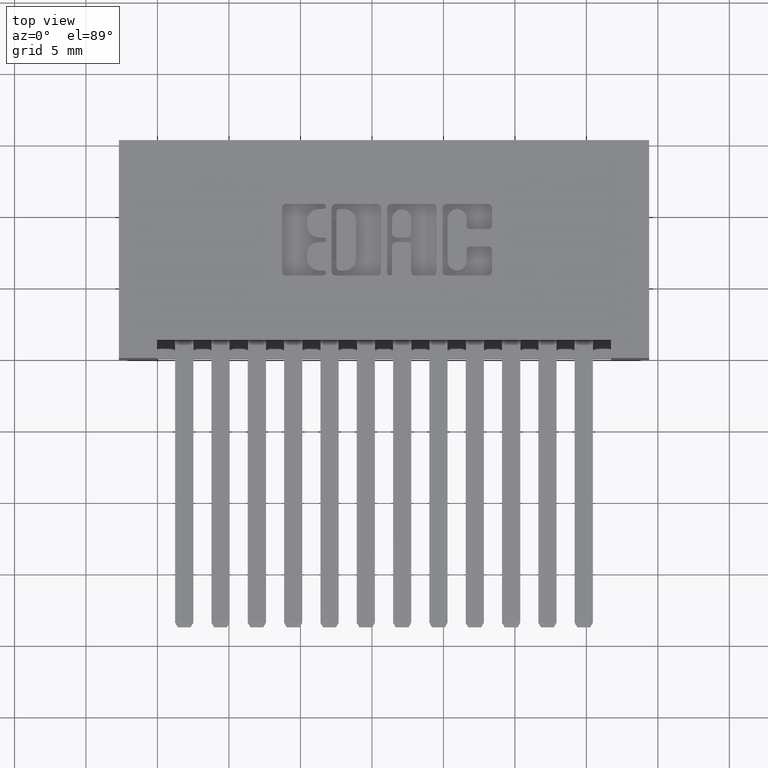
[diagram: clean part render]
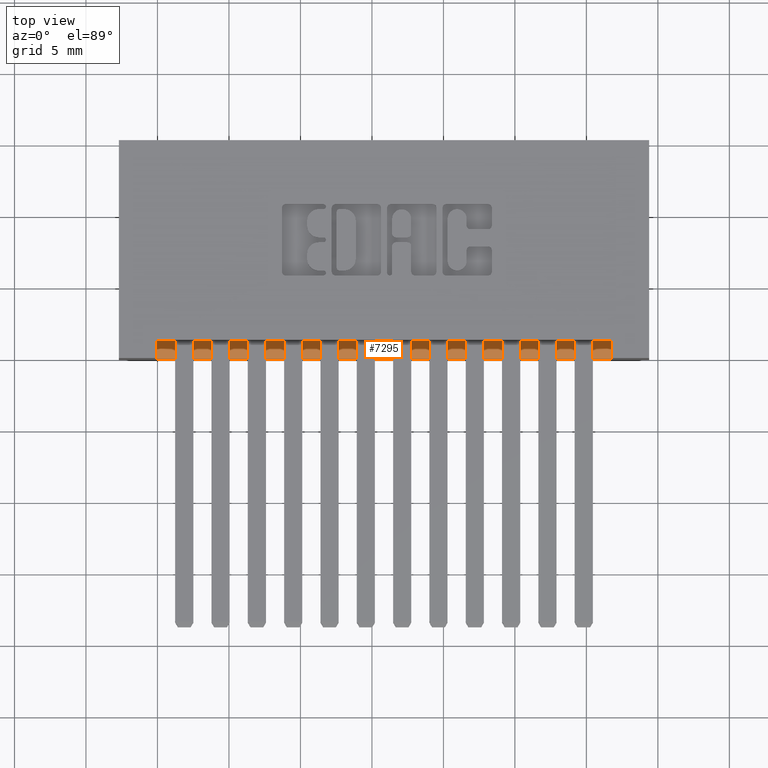
[diagram: same view with one face highlighted and labeled with its STEP entity id]
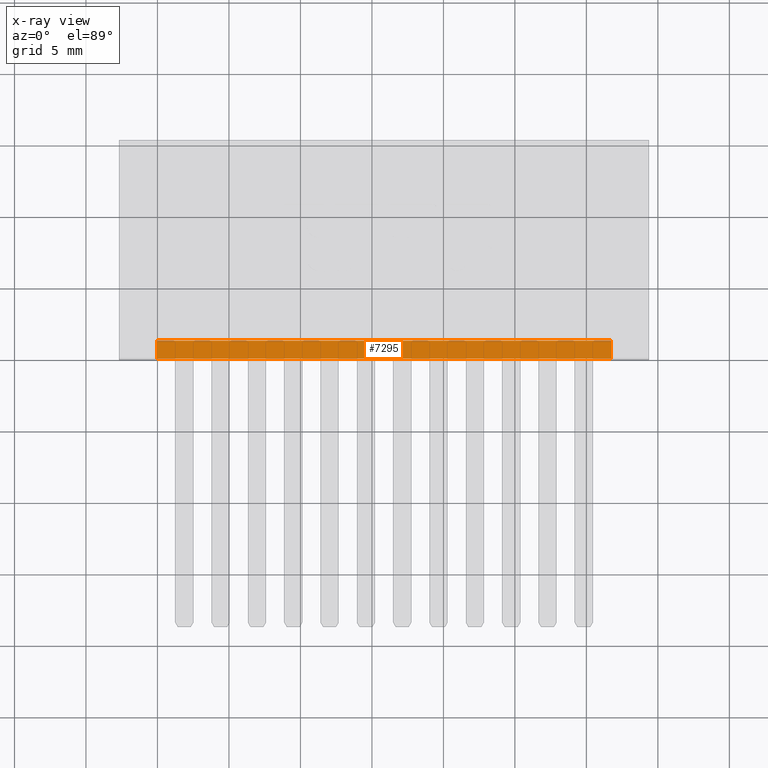
[diagram: x-ray of the same camera — body ghosted, the highlighted face saturated]
A machine part, top view. The second image highlights one B-rep face of the part: STEP entity #7295.
The next image is the same camera in x-ray: the body ghosted, the highlighted face saturated — about 0% of this face is hidden behind the body in this view.
In plain terms, the highlighted planar face has unit normal (0, 0, -1).
Its self-contained STEP definition (entity closure, byte-faithful):
#505 = EDGE_CURVE ( 'NONE', #4934, #10714, #10583, .T. ) ;
#1184 = VERTEX_POINT ( 'NONE', #3931 ) ;
#1445 = ORIENTED_EDGE ( 'NONE', *, *, #6365, .T. ) ;
#1530 = CARTESIAN_POINT ( 'NONE',  ( 0.3924999999999996800, 0.05000000000000000300, -0.1499999999999999900 ) ) ;
#1808 = DIRECTION ( 'NONE',  ( 0.0000000000000000000, 0.0000000000000000000, -1.000000000000000000 ) ) ;
#1895 = VECTOR ( 'NONE', #2578, 39.37007874015748100 ) ;
#2283 = CARTESIAN_POINT ( 'NONE',  ( 0.3924999999999996800, 0.05000000000000000300, -0.1499999999999999900 ) ) ;
#2415 = DIRECTION ( 'NONE',  ( 1.000000000000000000, 0.0000000000000000000, 0.0000000000000000000 ) ) ;
#2455 = CARTESIAN_POINT ( 'NONE',  ( 0.3924999999999996800, 0.05000000000000000300, -0.1499999999999999900 ) ) ;
#2473 = ORIENTED_EDGE ( 'NONE', *, *, #3725, .F. ) ;
#2578 = DIRECTION ( 'NONE',  ( -0.0000000000000000000, -1.000000000000000000, -0.0000000000000000000 ) ) ;
#3163 = DIRECTION ( 'NONE',  ( 1.000000000000000000, 0.0000000000000000000, 0.0000000000000000000 ) ) ;
#3725 = EDGE_CURVE ( 'NONE', #10714, #1184, #6353, .T. ) ;
#3931 = CARTESIAN_POINT ( 'NONE',  ( 1.642500000000000100, 0.0000000000000000000, -0.1499999999999999900 ) ) ;
#4407 = CARTESIAN_POINT ( 'NONE',  ( 1.642500000000000100, 0.05000000000000000300, -0.1499999999999999900 ) ) ;
#4934 = VERTEX_POINT ( 'NONE', #2455 ) ;
#5783 = ORIENTED_EDGE ( 'NONE', *, *, #6674, .T. ) ;
#6204 = DIRECTION ( 'NONE',  ( -0.0000000000000000000, -1.000000000000000000, -0.0000000000000000000 ) ) ;
#6299 = CARTESIAN_POINT ( 'NONE',  ( 1.642500000000000100, 0.05000000000000000300, -0.1499999999999999900 ) ) ;
#6353 = LINE ( 'NONE', #6299, #11254 ) ;
#6365 = EDGE_CURVE ( 'NONE', #11070, #1184, #9993, .T. ) ;
#6385 = CARTESIAN_POINT ( 'NONE',  ( 0.3924999999999996800, 0.0000000000000000000, -0.1499999999999999900 ) ) ;
#6674 = EDGE_CURVE ( 'NONE', #4934, #11070, #10139, .T. ) ;
#7082 = PLANE ( 'NONE',  #9789 ) ;
#7295 = ADVANCED_FACE ( 'NONE', ( #11857 ), #7082, .F. ) ;
#7381 = VECTOR ( 'NONE', #3163, 39.37007874015748100 ) ;
#7391 = VECTOR ( 'NONE', #2415, 39.37007874015748100 ) ;
#8161 = CARTESIAN_POINT ( 'NONE',  ( 0.3924999999999996800, 0.05000000000000000300, -0.1499999999999999900 ) ) ;
#8397 = EDGE_LOOP ( 'NONE', ( #1445, #2473, #10954, #5783 ) ) ;
#9113 = DIRECTION ( 'NONE',  ( -1.000000000000000000, 0.0000000000000000000, -0.0000000000000000000 ) ) ;
#9789 = AXIS2_PLACEMENT_3D ( 'NONE', #8161, #1808, #9113 ) ;
#9993 = LINE ( 'NONE', #6385, #7381 ) ;
#10139 = LINE ( 'NONE', #1530, #1895 ) ;
#10583 = LINE ( 'NONE', #2283, #7391 ) ;
#10714 = VERTEX_POINT ( 'NONE', #4407 ) ;
#10929 = CARTESIAN_POINT ( 'NONE',  ( 0.3924999999999996800, 0.0000000000000000000, -0.1499999999999999900 ) ) ;
#10954 = ORIENTED_EDGE ( 'NONE', *, *, #505, .F. ) ;
#11070 = VERTEX_POINT ( 'NONE', #10929 ) ;
#11254 = VECTOR ( 'NONE', #6204, 39.37007874015748100 ) ;
#11857 = FACE_OUTER_BOUND ( 'NONE', #8397, .T. ) ;